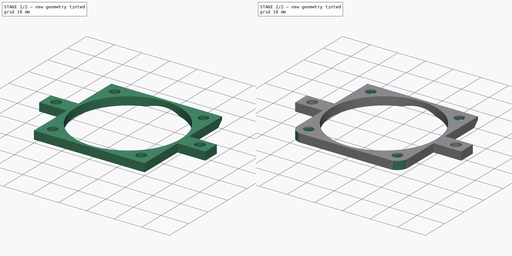
[diagram: build sequence overview — one tinted view per stage of 2, left to right]
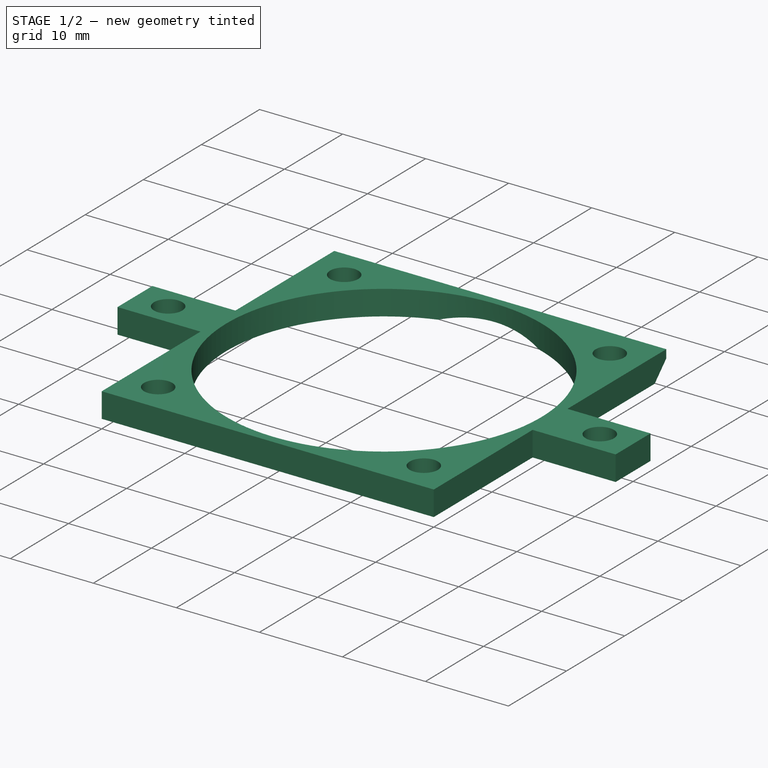
[diagram: stage 1 of 2 — iso view after this stage's code; geometry added in this stage tinted green]
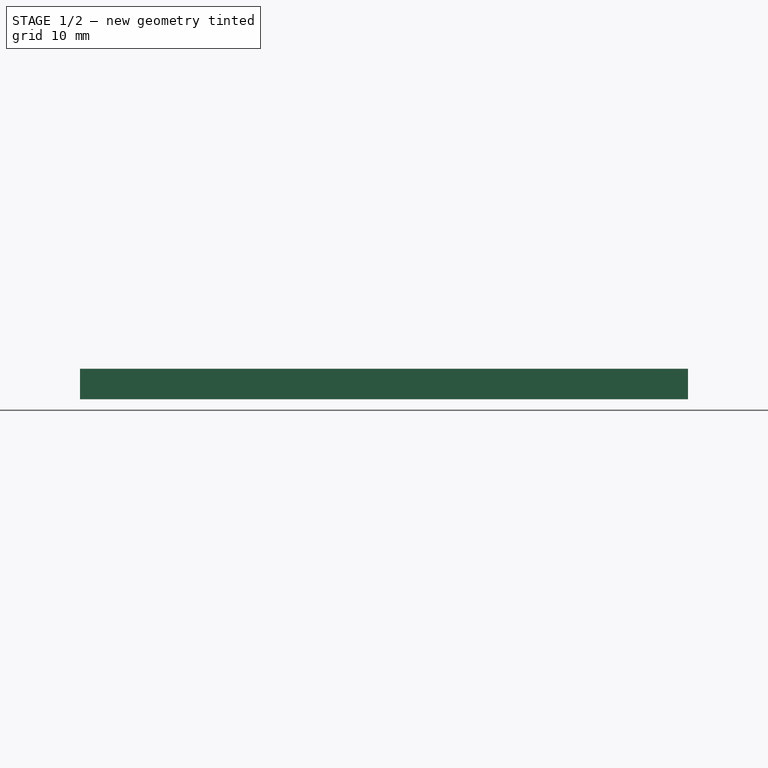
[diagram: stage 1 of 2 — front view after this stage's code; geometry added in this stage tinted green]
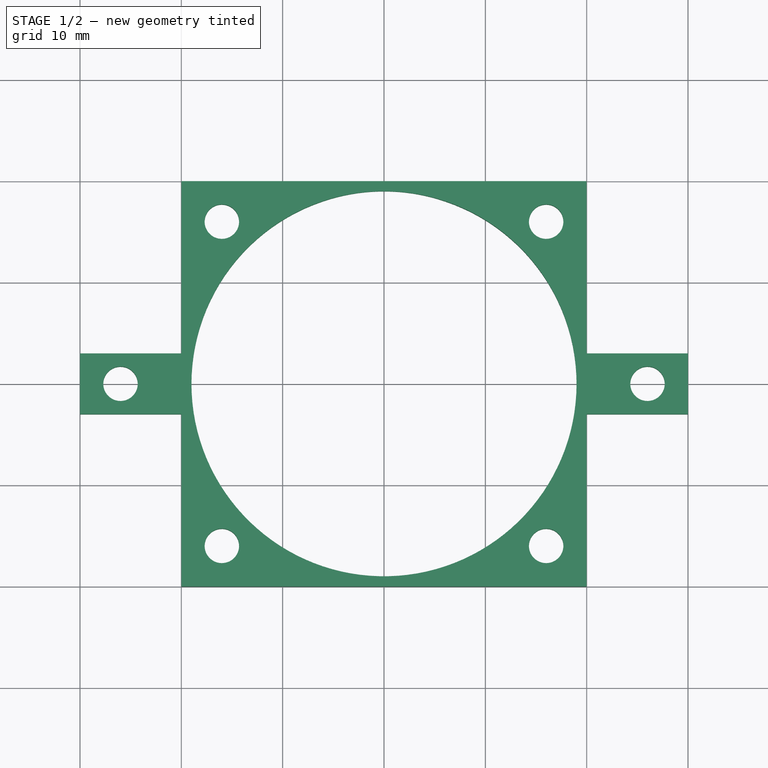
[diagram: stage 1 of 2 — top view after this stage's code; geometry added in this stage tinted green]
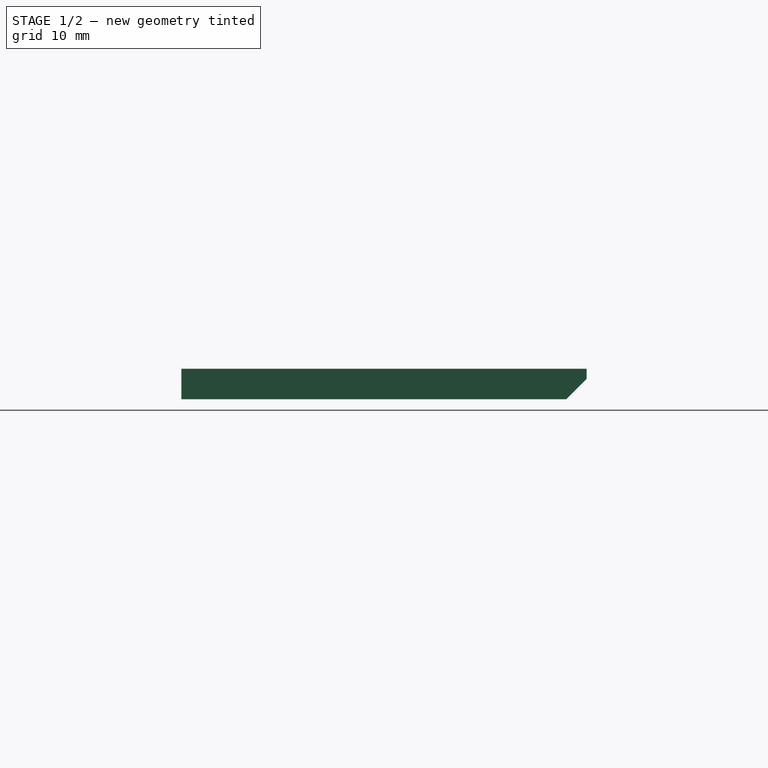
[diagram: stage 1 of 2 — right view after this stage's code; geometry added in this stage tinted green]
FCSTD DOCUMENT  (FreeCAD 0.19R24276 (Git))
Label: Art1FanHolder
License: All rights reserved
LicenseURL: http://en.wikipedia.org/wiki/All_rights_reserved
objects: PartDesign::Line×7, Sketcher::SketchObject×4, PartDesign::Pocket×3, PartDesign::CoordinateSystem×2, Spreadsheet::Sheet×1, PartDesign::Pad×1, PartDesign::Body×1
note: 22 computed .brp shape members not serialized (recipe doc carries the construction recipe); baked Part::Feature solids carry a one-line shape summary decoded from their .brp

FEATURE [Sketcher::SketchObject] Sketch
  FullyConstrained = true
  MapMode = 5
  Support = -> [XY_Plane]
  expr: Constraints[50] = Spreadsheet.M3BoltBodyRadius
  sketch-geometry (23):
    g0: Circle CenterX=0 CenterY=0 CenterZ=0 NormalX=0 NormalY=0 NormalZ=1 AngleXU=0 Radius=19
    g1: LineSegment StartX=-20 StartY=20 StartZ=0 EndX=20 EndY=20 EndZ=0
    g2: LineSegment StartX=20 StartY=20 StartZ=0 EndX=20 EndY=3 EndZ=0
    g3: LineSegment StartX=20 StartY=3 StartZ=0 EndX=30 EndY=3 EndZ=0
    g4: LineSegment StartX=30 StartY=3 StartZ=0 EndX=30 EndY=-3 EndZ=0
    g5: LineSegment StartX=30 StartY=-3 StartZ=0 EndX=20 EndY=-3 EndZ=0
    g6: LineSegment StartX=20 StartY=-3 StartZ=0 EndX=20 EndY=-20 EndZ=0
    g7: LineSegment StartX=20 StartY=-20 StartZ=0 EndX=-20 EndY=-20 EndZ=0
    g8: LineSegment StartX=-20 StartY=-20 StartZ=0 EndX=-20 EndY=-3 EndZ=0
    g9: LineSegment StartX=-20 StartY=-3 StartZ=0 EndX=-30 EndY=-3 EndZ=0
    g10: LineSegment StartX=-30 StartY=-3 StartZ=0 EndX=-30 EndY=3 EndZ=0
    g11: LineSegment StartX=-30 StartY=3 StartZ=0 EndX=-20 EndY=3 EndZ=0
    g12: LineSegment StartX=-20 StartY=3 StartZ=0 EndX=-20 EndY=20 EndZ=0
    g13: Circle CenterX=-16 CenterY=16 CenterZ=0 NormalX=0 NormalY=0 NormalZ=1 AngleXU=0 Radius=1.7
    g14: Circle CenterX=16 CenterY=16 CenterZ=0 NormalX=0 NormalY=0 NormalZ=1 AngleXU=0 Radius=1.7
    g15: Circle CenterX=-16 CenterY=-16 CenterZ=0 NormalX=0 NormalY=0 NormalZ=1 AngleXU=0 Radius=1.7
    g16: Circle CenterX=16 CenterY=-16 CenterZ=0 NormalX=0 NormalY=0 NormalZ=1 AngleXU=0 Radius=1.7
    g17: LineSegment StartX=-16 StartY=16 StartZ=0 EndX=16 EndY=16 EndZ=0
    g18: LineSegment StartX=16 StartY=16 StartZ=0 EndX=16 EndY=-16 EndZ=0
    g19: LineSegment StartX=16 StartY=-16 StartZ=0 EndX=-16 EndY=-16 EndZ=0
    g20: LineSegment StartX=-16 StartY=-16 StartZ=0 EndX=-16 EndY=16 EndZ=0
    g21: Circle CenterX=26 CenterY=0 CenterZ=0 NormalX=0 NormalY=0 NormalZ=1 AngleXU=0 Radius=1.7
    g22: Circle CenterX=-26 CenterY=0 CenterZ=0 NormalX=0 NormalY=0 NormalZ=1 AngleXU=0 Radius=1.7
  constraints (56):
    c: Coincident(g0,g-1)
    c: Radius(g0) = 19
    c: Horizontal(g1)
    c: Coincident(g1,g2)
    c: Vertical(g2)
    c: Coincident(g2,g3)
    c: Horizontal(g3)
    c: Coincident(g3,g4)
    c: Coincident(g4,g5)
    c: Coincident(g5,g6)
    c: Coincident(g6,g7)
    c: Horizontal(g7)
    c: Coincident(g7,g8)
    c: Vertical(g8)
    c: Coincident(g8,g9)
    c: Coincident(g9,g10)
    c: Coincident(g10,g11)
    c: Coincident(g11,g12)
    c: Coincident(g12,g1)
    c: Vertical(g12)
    c: Vertical(g6)
    c: Vertical(g10)
    c: Horizontal(g9)
    c: Horizontal(g5)
    c: Symmetric(g5,g8,g-2)
    c: Symmetric(g11,g2,g-2)
    c: Symmetric(g3,g4,g-1)
    c: Symmetric(g6,g1,g-1)
    c: Symmetric(g3,g10,g-2)
    c: DistanceY(g4,g4) = 6
    c: DistanceY(g6,g1) = 40
    c: DistanceX(g7,g6) = 40
    c: DistanceX(g5,g5) = 10
    c: Coincident(g17,g18)
    c: Coincident(g18,g19)
    c: Coincident(g19,g20)
    c: Coincident(g20,g17)
    c: Horizontal(g19)
    c: Vertical(g18)
    c: Coincident(g17,g13)
    c: Coincident(g18,g16)
    c: Coincident(g15,g19)
    c: Coincident(g17,g14)
    c: Symmetric(g14,g13,g-2)
    c: Symmetric(g13,g15,g-1)
    c: Equal(g19,g20)
    c: DistanceX(g19,g19) = 32
    c: Equal(g15,g13)
    c: Equal(g13,g14)
    c: Equal(g14,g16)
    c: Radius(g16) = 1.7
    c: PointOnObject(g21,g-1)
    c: Symmetric(g22,g21,g-2)
    c: Equal(g21,g22)
    c: Equal(g22,g13)
    c: DistanceX(g22,g21) = 52
FEATURE [Spreadsheet::Sheet] Spreadsheet
  cells = A2=M3BoltBodyRadius; B2(M3BoltBodyRadius)=1.7; A3=M3BoltHeadRadius; B3(M3BoltHeadRadius)=2.95; A4=M3NutCircumradius; B4(M3NutCircumradius)=3.35; A5=M3NutThickness; B5(M3NutThickness)=3; A6=Bearing655ZZBodyRadius; B6(Bearing655ZZBodyRadius)=8.199999999999999
FEATURE [PartDesign::Pad] Pad
  Direction = (1,1,1)
  Length = 3
  Length2 = 100
  Profile = -> Sketch
  Refine = true
  Type = 0
FEATURE [Sketcher::SketchObject] Sketch001
  ExternalGeometry = -> [Pad]
  FullyConstrained = true
  MapMode = 5
  Placement = pos=(-20,0,0) rot=(0.57735,-0.57735,-0.57735;2.0944rad)
  Support = -> [Pad]
  sketch-geometry (3):
    g0: LineSegment StartX=-18 StartY=0 StartZ=0 EndX=-20 EndY=2 EndZ=0
    g1: LineSegment StartX=-20 StartY=2 StartZ=0 EndX=-20 EndY=0 EndZ=0
    g2: LineSegment StartX=-20 StartY=0 StartZ=0 EndX=-18 EndY=0 EndZ=0
  constraints (9):
    c: PointOnObject(g0,g-1)
    c: Coincident(g0,g1)
    c: PointOnObject(g1,g-1)
    c: Vertical(g1)
    c: Coincident(g1,g2)
    c: Coincident(g2,g0)
    c: Angle(g0,g2) = 0.785398
    c: Vertical(g1,g-3)
    c: DistanceY(g1,g1) = 2
FEATURE [PartDesign::Pocket] Pocket
  BaseFeature = -> Pad
  Length = 5
  Length2 = 100
  Profile = -> Sketch001
  Refine = true
  Type = 1
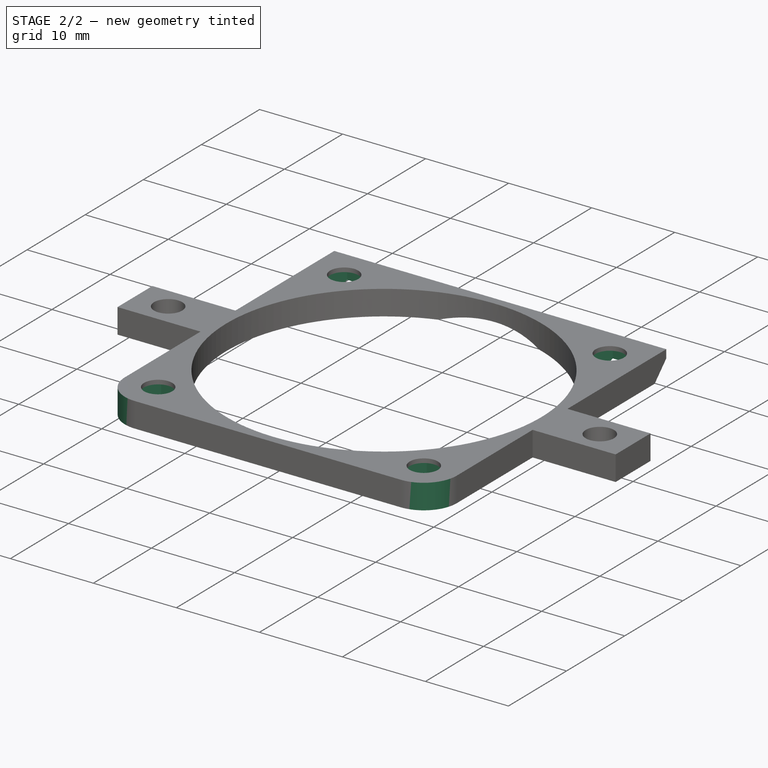
[diagram: stage 2 of 2 — iso view after this stage's code; geometry added in this stage tinted green]
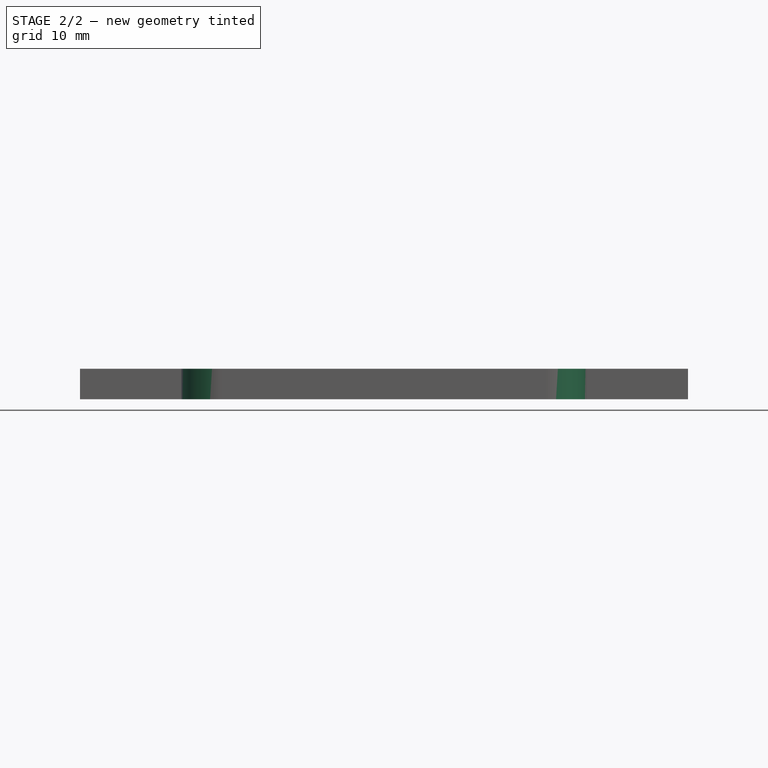
[diagram: stage 2 of 2 — front view after this stage's code; geometry added in this stage tinted green]
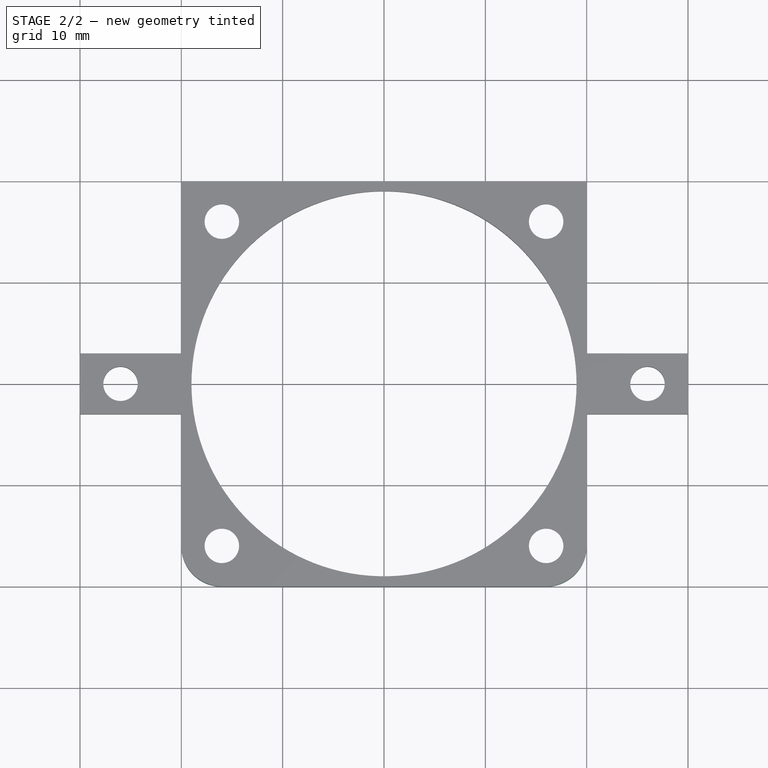
[diagram: stage 2 of 2 — top view after this stage's code; geometry added in this stage tinted green]
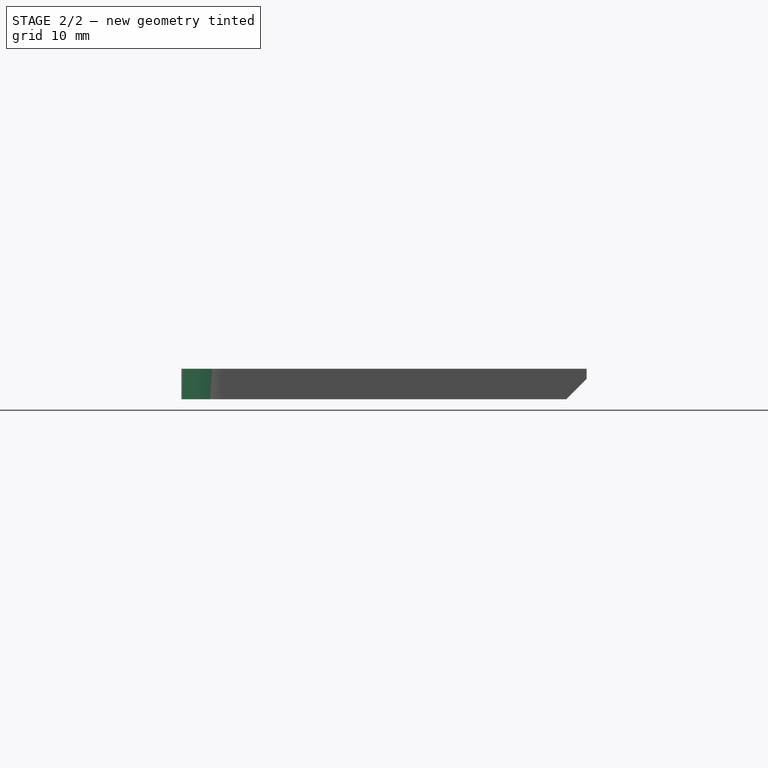
[diagram: stage 2 of 2 — right view after this stage's code; geometry added in this stage tinted green]
FEATURE [PartDesign::CoordinateSystem] LCS_Body
  AttacherType = Attacher::AttachEngine3D
  MapMode = 45
  Placement = pos=(2.7e-15,0,0) rot=(0,0,1;1.5708rad)
  Support = -> [Pocket]
FEATURE [PartDesign::CoordinateSystem] LCS_Fan
  AttacherType = Attacher::AttachEngine3D
  MapMode = 45
  Placement = pos=(8e-15,0,0) rot=(0,0,1;0rad)
  Support = -> [Pocket]
FEATURE [PartDesign::Line] HoleAxis_2
  AttacherType = Attacher::AttachEngineLine
  Length = 4.79083
  MapMode = 19
  Placement = pos=(-26,0,3) rot=(0,0,1;0rad)
  ResizeMode = 1
  Support = -> [Pocket]
FEATURE [PartDesign::Line] HoleAxis_3
  AttacherType = Attacher::AttachEngineLine
  Length = 4.79083
  MapMode = 19
  Placement = pos=(-16,-16,3) rot=(0,0,1;0rad)
  ResizeMode = 1
  Support = -> [Pocket]
FEATURE [PartDesign::Line] HoleAxis_5
  AttacherType = Attacher::AttachEngineLine
  Length = 4.79083
  MapMode = 19
  Placement = pos=(26,0,3) rot=(0,0,1;0rad)
  ResizeMode = 1
  Support = -> [Pocket]
FEATURE [Sketcher::SketchObject] Sketch002
  ExternalGeometry = -> [Pocket]
  FullyConstrained = true
  MapMode = 5
  Placement = pos=(0,0,3) rot=(0,0,1;0rad)
  Support = -> [Pocket]
  sketch-geometry (10):
    g0: ArcOfCircle CenterX=-16 CenterY=-16 CenterZ=0 NormalX=0 NormalY=0 NormalZ=1 AngleXU=0 Radius=4 StartAngle=3.14159 EndAngle=4.71239
    g1: ArcOfCircle CenterX=16 CenterY=-16 CenterZ=0 NormalX=0 NormalY=0 NormalZ=1 AngleXU=0 Radius=4 StartAngle=4.71239 EndAngle=6.28318
    g2: LineSegment StartX=-16 StartY=-20 StartZ=0 EndX=-16 EndY=-25 EndZ=0
    g3: LineSegment StartX=-16 StartY=-25 StartZ=0 EndX=-25 EndY=-25 EndZ=0
    g4: LineSegment StartX=-25 StartY=-25 StartZ=0 EndX=-25 EndY=-16 EndZ=0
    g5: LineSegment StartX=-25 StartY=-16 StartZ=0 EndX=-20 EndY=-16 EndZ=0
    g6: LineSegment StartX=16 StartY=-20 StartZ=0 EndX=16 EndY=-25 EndZ=0
    g7: LineSegment StartX=16 StartY=-25 StartZ=0 EndX=25 EndY=-25 EndZ=0
    g8: LineSegment StartX=25 StartY=-25 StartZ=0 EndX=25 EndY=-16 EndZ=0
    g9: LineSegment StartX=25 StartY=-16 StartZ=0 EndX=20 EndY=-16 EndZ=0
  constraints (30):
    c: Coincident(g0,g-6)
    c: PointOnObject(g0,g-7)
    c: PointOnObject(g0,g-3)
    c: Coincident(g1,g-5)
    c: PointOnObject(g1,g-4)
    c: PointOnObject(g1,g-3)
    c: Tangent(g-4,g1)
    c: Tangent(g0,g-7)
    c: Vertical(g2)
    c: Coincident(g2,g3)
    c: Coincident(g3,g4)
    c: Coincident(g4,g5)
    c: Coincident(g5,g0)
    c: Coincident(g0,g2)
    c: Horizontal(g3)
    c: Vertical(g4)
    c: Horizontal(g5)
    c: Equal(g5,g2)
    c: DistanceX(g5,g5) = 5
    c: Coincident(g6,g1)
    c: Vertical(g6)
    c: Coincident(g7,g6)
    c: Horizontal(g7)
    c: Coincident(g8,g7)
    c: Vertical(g8)
    c: Coincident(g9,g8)
    c: Coincident(g9,g1)
    c: Horizontal(g9)
    c: Equal(g9,g6)
    c: Equal(g6,g2)
FEATURE [PartDesign::Pocket] Pocket001
  BaseFeature = -> Pocket
  Length = 5
  Length2 = 100
  Profile = -> Sketch002
  Refine = true
  Type = 0
FEATURE [Sketcher::SketchObject] Sketch003
  ExternalGeometry = -> [Pocket001]
  FullyConstrained = true
  MapMode = 5
  Placement = pos=(0,0,0) rot=(1,0,0;3.14159rad)
  Support = -> [Pocket001]
  expr: Constraints[75] = Spreadsheet.M3NutCircumradius
  sketch-geometry (28):
    g0: LineSegment StartX=14.325 StartY=13.0988 StartZ=0 EndX=17.675 EndY=13.0988 EndZ=0
    g1: LineSegment StartX=17.675 StartY=13.0988 StartZ=0 EndX=19.35 EndY=16 EndZ=0
    g2: LineSegment StartX=19.35 StartY=16 StartZ=0 EndX=17.675 EndY=18.9012 EndZ=0
    g3: LineSegment StartX=17.675 StartY=18.9012 StartZ=0 EndX=14.325 EndY=18.9012 EndZ=0
    g4: LineSegment StartX=14.325 StartY=18.9012 StartZ=0 EndX=12.65 EndY=16 EndZ=0
    g5: LineSegment StartX=12.65 StartY=16 StartZ=0 EndX=14.325 EndY=13.0988 EndZ=0
    g6: Circle CenterX=16 CenterY=16 CenterZ=0 NormalX=0 NormalY=0 NormalZ=1 AngleXU=0 Radius=3.35
    g7: LineSegment StartX=-14.325 StartY=13.0988 StartZ=0 EndX=-12.65 EndY=16 EndZ=0
    g8: LineSegment StartX=-12.65 StartY=16 StartZ=0 EndX=-14.325 EndY=18.9012 EndZ=0
    g9: LineSegment StartX=-14.325 StartY=18.9012 StartZ=0 EndX=-17.675 EndY=18.9012 EndZ=0
    g10: LineSegment StartX=-17.675 StartY=18.9012 StartZ=0 EndX=-19.35 EndY=16 EndZ=0
    g11: LineSegment StartX=-19.35 StartY=16 StartZ=0 EndX=-17.675 EndY=13.0988 EndZ=0
    g12: LineSegment StartX=-17.675 StartY=13.0988 StartZ=0 EndX=-14.325 EndY=13.0988 EndZ=0
    g13: Circle CenterX=-16 CenterY=16 CenterZ=0 NormalX=0 NormalY=0 NormalZ=1 AngleXU=0 Radius=3.35
    g14: LineSegment StartX=-14.325 StartY=-13.0988 StartZ=0 EndX=-17.675 EndY=-13.0988 EndZ=0
    g15: LineSegment StartX=-17.675 StartY=-13.0988 StartZ=0 EndX=-19.35 EndY=-16 EndZ=0
    g16: LineSegment StartX=-19.35 StartY=-16 StartZ=0 EndX=-17.675 EndY=-18.9012 EndZ=0
    g17: LineSegment StartX=-17.675 StartY=-18.9012 StartZ=0 EndX=-14.325 EndY=-18.9012 EndZ=0
    g18: LineSegment StartX=-14.325 StartY=-18.9012 StartZ=0 EndX=-12.65 EndY=-16 EndZ=0
    g19: LineSegment StartX=-12.65 StartY=-16 StartZ=0 EndX=-14.325 EndY=-13.0988 EndZ=0
    g20: Circle CenterX=-16 CenterY=-16 CenterZ=0 NormalX=0 NormalY=0 NormalZ=1 AngleXU=0 Radius=3.35
    g21: LineSegment StartX=14.325 StartY=-13.0988 StartZ=0 EndX=12.65 EndY=-16 EndZ=0
    g22: LineSegment StartX=12.65 StartY=-16 StartZ=0 EndX=14.325 EndY=-18.9012 EndZ=0
    g23: LineSegment StartX=14.325 StartY=-18.9012 StartZ=0 EndX=17.675 EndY=-18.9012 EndZ=0
    g24: LineSegment StartX=17.675 StartY=-18.9012 StartZ=0 EndX=19.35 EndY=-16 EndZ=0
    g25: LineSegment StartX=19.35 StartY=-16 StartZ=0 EndX=17.675 EndY=-13.0988 EndZ=0
    g26: LineSegment StartX=17.675 StartY=-13.0988 StartZ=0 EndX=14.325 EndY=-13.0988 EndZ=0
    g27: Circle CenterX=16 CenterY=-16 CenterZ=0 NormalX=0 NormalY=0 NormalZ=1 AngleXU=0 Radius=3.35
  constraints (64):
    c: Coincident(g0,g1)
    c: Coincident(g1,g2)
    c: Coincident(g2,g3)
    c: Coincident(g3,g4)
    c: Coincident(g4,g5)
    c: Coincident(g5,g0)
    c: Equal(g0, g1-g5) x5
    c: PointOnObject(g0,g6)
    c: PointOnObject(g1,g6)
    c: PointOnObject(g2,g6)
    c: PointOnObject(g3,g6)
    c: PointOnObject(g4,g6)
    c: PointOnObject(g5,g6)
    c: Coincident(g6,g-3)
    c: Coincident(g7,g8)
    c: Coincident(g8,g9)
    c: Coincident(g9,g10)
    c: Coincident(g10,g11)
    c: Coincident(g11,g12)
    c: Coincident(g12,g7)
    c: Equal(g7, g8-g12) x5
    c: PointOnObject(g7,g13)
    c: PointOnObject(g8,g13)
    c: PointOnObject(g9,g13)
    c: PointOnObject(g10,g13)
    c: PointOnObject(g11,g13)
    c: PointOnObject(g12,g13)
    c: Coincident(g13,g-4)
    c: Coincident(g14,g15)
    c: Coincident(g15,g16)
    c: Coincident(g16,g17)
    c: Coincident(g17,g18)
    c: Coincident(g18,g19)
    c: Coincident(g19,g14)
    c: Equal(g14, g15-g19) x5
    c: PointOnObject(g14,g20)
    c: PointOnObject(g15,g20)
    c: PointOnObject(g16,g20)
    c: PointOnObject(g17,g20)
    c: PointOnObject(g18,g20)
    c: PointOnObject(g19,g20)
    c: Coincident(g20,g-5)
    c: Coincident(g21,g22)
    c: Coincident(g22,g23)
    c: Coincident(g23,g24)
    c: Coincident(g24,g25)
    c: Coincident(g25,g26)
    c: Coincident(g26,g21)
    c: Equal(g21, g22-g26) x5
    c: PointOnObject(g21,g27)
    c: PointOnObject(g22,g27)
    c: PointOnObject(g23,g27)
    c: PointOnObject(g24,g27)
    c: PointOnObject(g25,g27)
    c: PointOnObject(g26,g27)
    c: Coincident(g27,g-6)
    c: Equal(g27,g20)
    c: Equal(g20,g13)
    c: Equal(g13,g6)
    c: Radius(g27) = 3.35
    c: Horizontal(g23)
    c: Horizontal(g17)
    c: Horizontal(g12)
    c: Horizontal(g0)
FEATURE [PartDesign::Pocket] Pocket002
  BaseFeature = -> Pocket001
  Length = 2.5
  Length2 = 100
  Profile = -> Sketch003
  Refine = true
  Type = 0
FEATURE [PartDesign::Line] HoleAxis_1
  AttacherType = Attacher::AttachEngineLine
  Length = 4.79083
  MapMode = 19
  Placement = pos=(-16,16,2.5) rot=(-1,0,0;3.14159rad)
  ResizeMode = 1
  Support = -> [Pocket002]
FEATURE [PartDesign::Line] HoleAxis_4
  AttacherType = Attacher::AttachEngineLine
  Length = 4.79083
  MapMode = 19
  Placement = pos=(16,16,2.5) rot=(-1,0,0;3.14159rad)
  ResizeMode = 1
  Support = -> [Pocket002]
FEATURE [PartDesign::Line] HoleAxis_6
  AttacherType = Attacher::AttachEngineLine
  Length = 4.79083
  MapMode = 19
  Placement = pos=(16,-16,2.5) rot=(-1,0,0;3.14159rad)
  ResizeMode = 1
  Support = -> [Pocket002]
FEATURE [PartDesign::Line] HoleAxis_7
  AttacherType = Attacher::AttachEngineLine
  Length = 4.79083
  MapMode = 19
  Placement = pos=(-16,-16,2.5) rot=(-1,0,0;3.14159rad)
  ResizeMode = 1
  Support = -> [Pocket002]
FEATURE [PartDesign::Body] Body  label="Art1FanHolder"
  Group = -> [Sketch,Pad,Sketch001,Pocket,LCS_Body,LCS_Fan,HoleAxis_2,HoleAxis_3,HoleAxis_5,Sketch002,Pocket001,Sketch003,Pocket002,HoleAxis_1,HoleAxis_4,HoleAxis_6,HoleAxis_7]
  Origin = -> Origin
  Tip = -> Pocket002
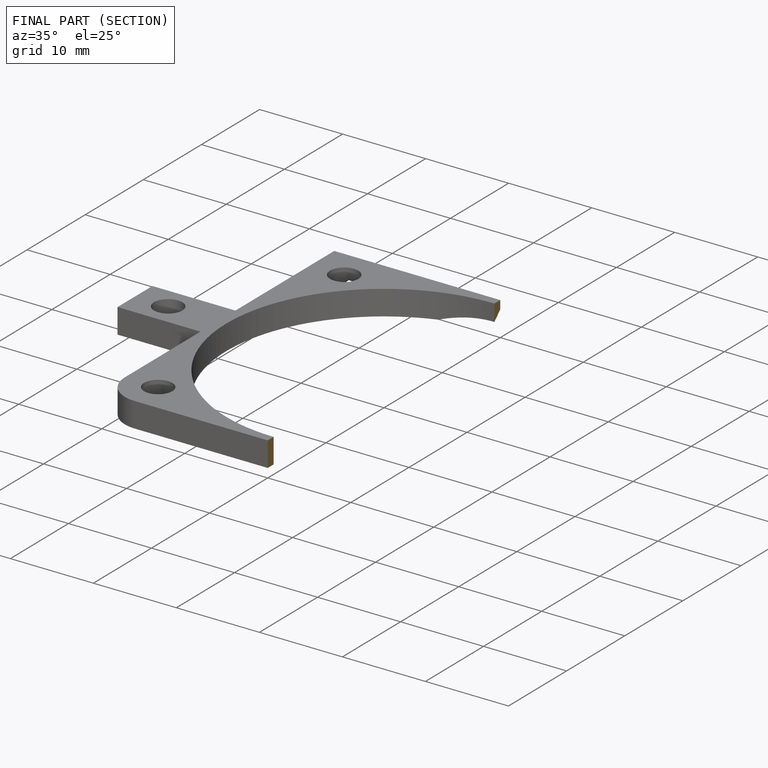
[diagram: finished part — half-section view (interior)]
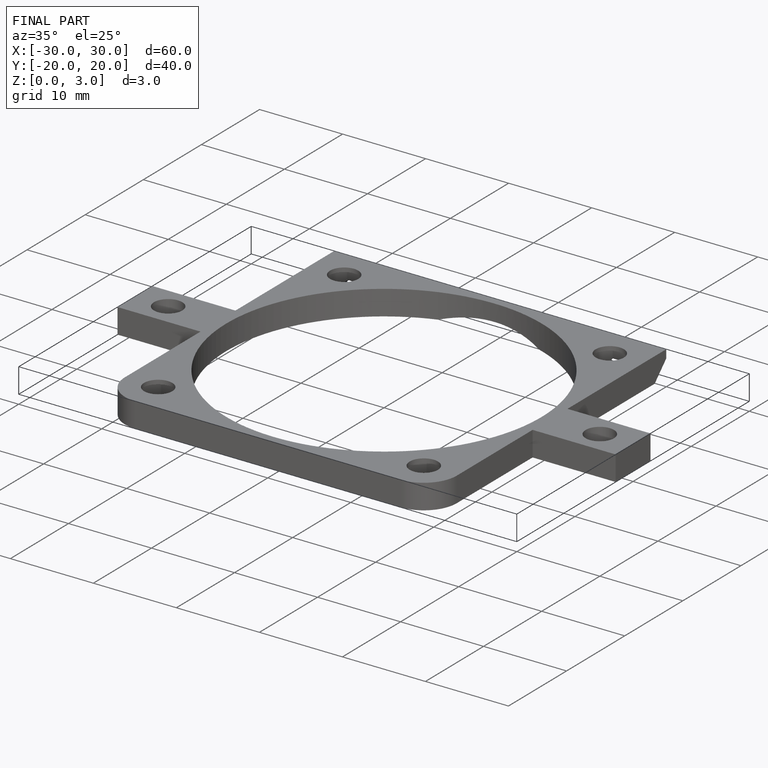
[diagram: finished part — iso view with bounding-box wireframe]
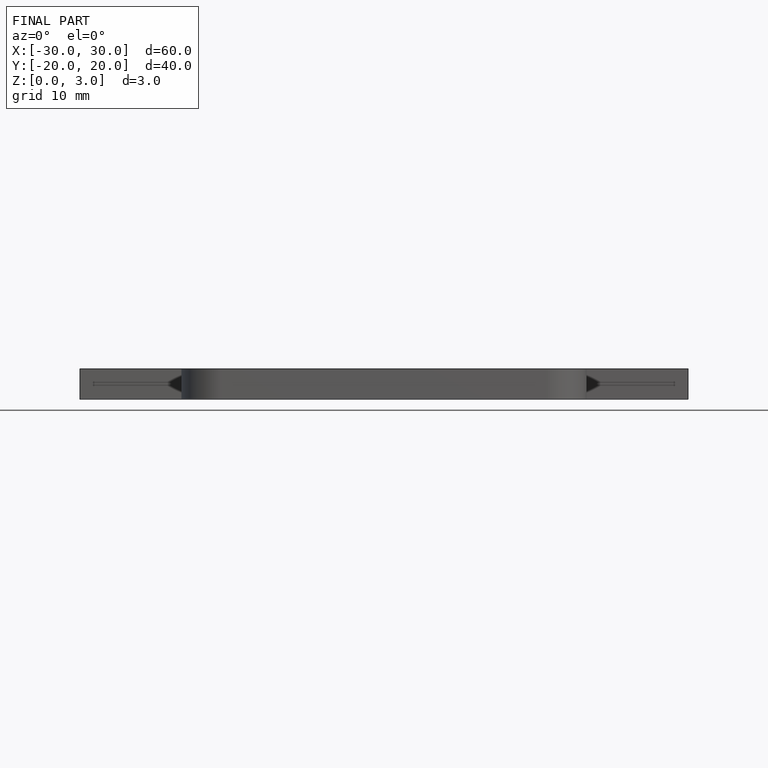
[diagram: finished part — front view with bounding-box wireframe]
